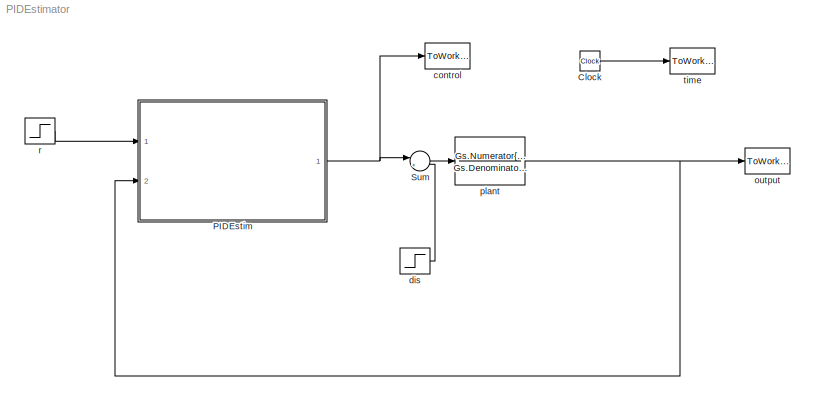
MODEL PIDEstimator
KIND model
BLOCK [Clock] Clock
  SID = 34
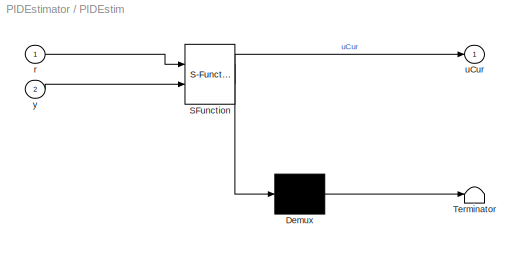
BLOCK [SubSystem] PIDEstim
  ErrorFcn = Stateflow.Translate.translate
  PermitHierarchicalResolution = ExplicitOnly
  Ports = [2, 1]
  RequestExecContextInheritance = off
  SFBlockType = MATLAB Function
  SID = 44
  TreatAsAtomicUnit = on
BLOCK [Demux] PIDEstim/ Demux 
  Outputs = 1
  Ports = [1, 1]
  SID = 44::25
BLOCK [S-Function] PIDEstim/ SFunction 
  EnableBusSupport = on
  FunctionName = sf_sfun
  Parameters = K1,K2,K3,a0,a1,alpha3,deltat,tauf,umax,umin
  PortCounts = [2 2]
  Ports = [2, 2]
  SFcnIsStateOwnerBlock = off
  SFunctionDeploymentMode = off
  SID = 44::24
  Tag = Stateflow S-Function 2
BLOCK [Terminator] PIDEstim/ Terminator 
  SID = 44::26
BLOCK [Inport] PIDEstim/r
  IconDisplay = Port number
  SID = 44::19
BLOCK [Outport] PIDEstim/uCur
  IconDisplay = Port number
  SID = 44::5
BLOCK [Inport] PIDEstim/y
  IconDisplay = Port number
  Port = 2
  SID = 44::20
BLOCK [Sum] Sum
  IconShape = round
  InputSameDT = off
  Inputs = |++
  OutDataTypeStr = Inherit: Inherit via internal rule
  Ports = [2, 1]
  SID = 46
  SaturateOnIntegerOverflow = off
BLOCK [ToWorkspace] control
  MaxDataPoints = 10000
  Ports = [1]
  SID = 36
  VariableName = u
BLOCK [Step] dis
  After = dAmp
  SID = 45
  SampleTime = 0
  Time = Tsim/2
BLOCK [ToWorkspace] output
  MaxDataPoints = 10000
  Ports = [1]
  SID = 28
  VariableName = y
BLOCK [TransferFcn] plant
  Denominator = Gs.Denominator{1,1}
  Numerator = Gs.Numerator{1,1}
  SID = 1
BLOCK [Step] r
  SID = 31
  SampleTime = 0
  Time = 0
BLOCK [ToWorkspace] time
  MaxDataPoints = 10000
  Ports = [1]
  SID = 33
  VariableName = t
LINE Clock:1 -> time:1
LINE PIDEstim/ Demux :1 -> PIDEstim/ Terminator :1
LINE PIDEstim/ SFunction :1 -> PIDEstim/ Demux :1
LINE PIDEstim/ SFunction :2 -> PIDEstim/uCur:1
LINE PIDEstim/r:1 -> PIDEstim/ SFunction :1
LINE PIDEstim/y:1 -> PIDEstim/ SFunction :2
NET PIDEstim:1 -> Sum:1, control:1
LINE Sum:1 -> plant:1
LINE dis:1 -> Sum:2
NET plant:1 -> PIDEstim:2, output:1
LINE r:1 -> PIDEstim:1
note: NET lines group one-source signal fan-out (src -> all destinations, sorted); 1:1 wires keep LINE
CHART PIDEstim states=1 transitions=1
  STATE_LABEL 'eML_blk_kernel()'
